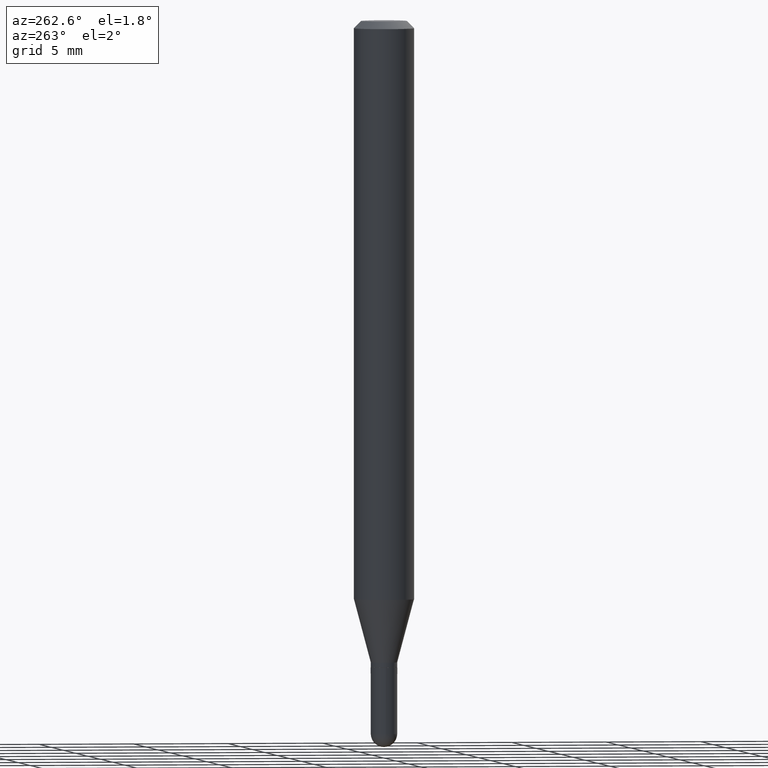
[diagram: clean part render]
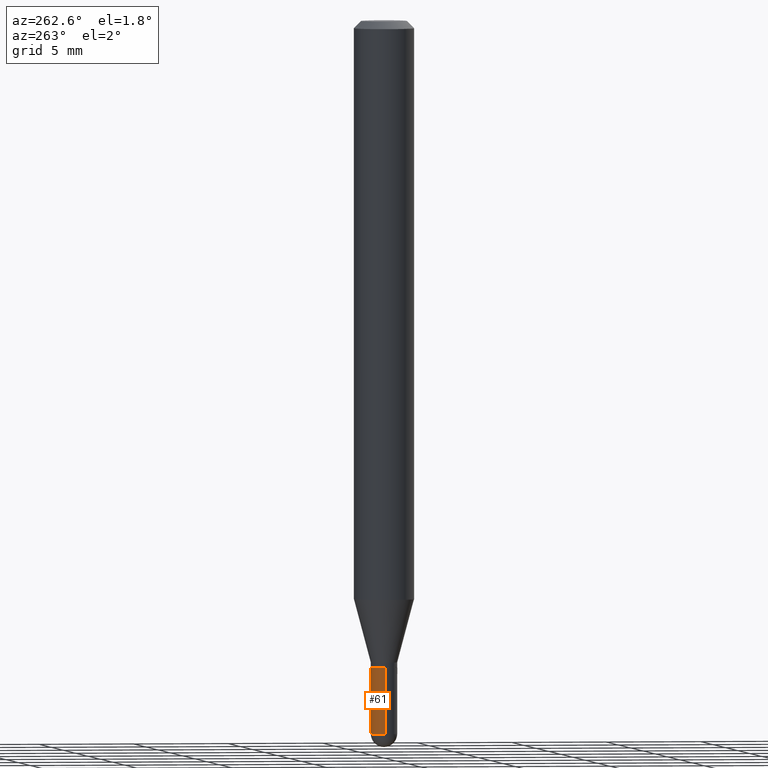
[diagram: same view with one face highlighted and labeled with its STEP entity id]
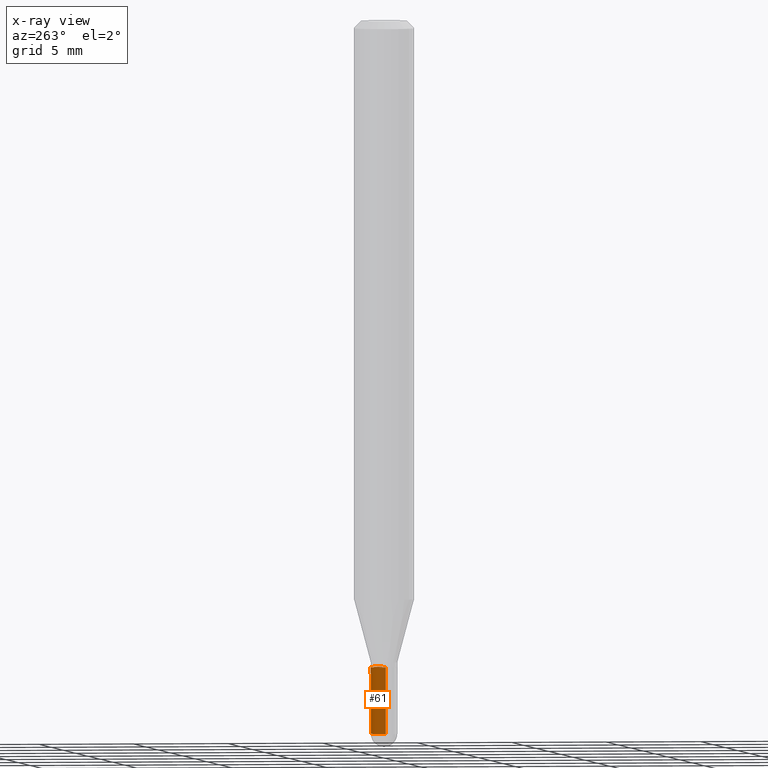
[diagram: x-ray of the same camera — body ghosted, the highlighted face saturated]
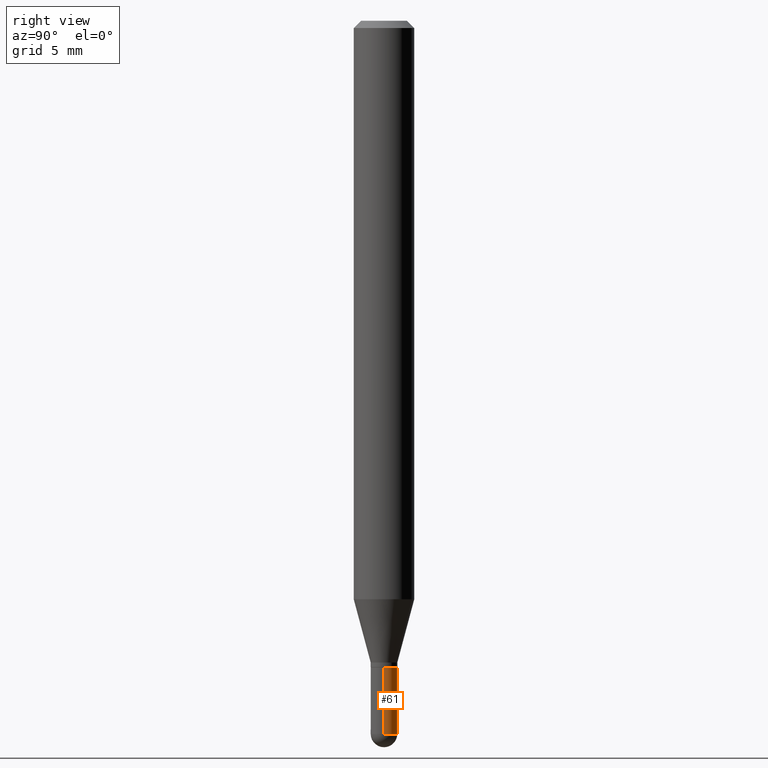
[diagram: same view with one face highlighted and labeled with its STEP entity id]
A machine part, auxiliary view. The second image highlights one B-rep face of the part: STEP entity #61.
The next image is the same camera in x-ray: the body ghosted, the highlighted face saturated — about 0% of this face is hidden behind the body in this view.
A second angle (right view) of the same face is appended — the face is thin or edge-on in the first view.
In plain terms, the highlighted cylindrical surface (edge-blend (fillet) strip) has radius 0.6985 mm, axis along (-0, 0, 1).
Its self-contained STEP definition (entity closure, byte-faithful):
#17 = VECTOR ( 'NONE', #160, 39.37007874015748143 ) ;
#21 = CIRCLE ( 'NONE', #27, 0.02750000000000000708 ) ;
#27 = AXIS2_PLACEMENT_3D ( 'NONE', #163, #389, #238 ) ;
#48 = EDGE_CURVE ( 'NONE', #463, #242, #21, .T. ) ;
#58 = DIRECTION ( 'NONE',  ( -2.445468806185136597E-29, 3.491481338843145583E-15, 1.000000000000000000 ) ) ;
#61 = ADVANCED_FACE ( 'NONE', ( #272 ), #301, .T. ) ;
#71 = DIRECTION ( 'NONE',  ( 1.000000000000000000, -6.982962677686277755E-15, 0.000000000000000000 ) ) ;
#77 = CARTESIAN_POINT ( 'NONE',  ( 0.000000000000000000, 0.000000000000000000, 0.000000000000000000 ) ) ;
#91 = ORIENTED_EDGE ( 'NONE', *, *, #48, .T. ) ;
#103 = CARTESIAN_POINT ( 'NONE',  ( -0.02750000000000000708, 1.953992523340276014E-16, -1.352707149820099356E-30 ) ) ;
#111 = VERTEX_POINT ( 'NONE', #131 ) ;
#131 = CARTESIAN_POINT ( 'NONE',  ( -0.02750000000000000014, -4.705767677067038393E-15, -1.335000000000000187 ) ) ;
#137 = EDGE_CURVE ( 'NONE', #200, #214, #512, .T. ) ;
#142 = CARTESIAN_POINT ( 'NONE',  ( -0.02750000000000000708, -4.705767677067038393E-15, -1.472500000000000142 ) ) ;
#160 = DIRECTION ( 'NONE',  ( -2.445468806185136877E-29, 3.491481338843145188E-15, 1.000000000000000000 ) ) ;
#161 = EDGE_LOOP ( 'NONE', ( #91, #299, #259, #421, #290 ) ) ;
#163 = CARTESIAN_POINT ( 'NONE',  ( 3.600952817107613706E-29, -5.141206271446532325E-15, -1.472500000000000142 ) ) ;
#181 = AXIS2_PLACEMENT_3D ( 'NONE', #77, #304, #345 ) ;
#200 = VERTEX_POINT ( 'NONE', #361 ) ;
#213 = CARTESIAN_POINT ( 'NONE',  ( 3.264700856257157760E-29, -4.661127587355599122E-15, -1.335000000000000187 ) ) ;
#214 = VERTEX_POINT ( 'NONE', #445 ) ;
#220 = AXIS2_PLACEMENT_3D ( 'NONE', #258, #416, #71 ) ;
#238 = DIRECTION ( 'NONE',  ( 1.000000000000000000, -6.982962677686277755E-15, 0.000000000000000000 ) ) ;
#242 = VERTEX_POINT ( 'NONE', #142 ) ;
#248 = LINE ( 'NONE', #103, #364 ) ;
#252 = EDGE_CURVE ( 'NONE', #214, #111, #278, .T. ) ;
#258 = CARTESIAN_POINT ( 'NONE',  ( 3.600952817107613706E-29, -5.141206271446532325E-15, -1.472500000000000142 ) ) ;
#259 = ORIENTED_EDGE ( 'NONE', *, *, #252, .F. ) ;
#272 = FACE_OUTER_BOUND ( 'NONE', #161, .T. ) ;
#277 = CARTESIAN_POINT ( 'NONE',  ( 0.02750000000000000708, -1.920314736363723691E-16, 1.340948613343882588E-30 ) ) ;
#278 = CIRCLE ( 'NONE', #291, 0.02750000000000000014 ) ;
#286 = DIRECTION ( 'NONE',  ( 1.000000000000000000, -6.982962677686279332E-15, 0.000000000000000000 ) ) ;
#288 = EDGE_CURVE ( 'NONE', #242, #111, #248, .T. ) ;
#290 = ORIENTED_EDGE ( 'NONE', *, *, #479, .T. ) ;
#291 = AXIS2_PLACEMENT_3D ( 'NONE', #213, #58, #286 ) ;
#299 = ORIENTED_EDGE ( 'NONE', *, *, #288, .T. ) ;
#301 = CYLINDRICAL_SURFACE ( 'NONE', #181, 0.02750000000000000708 ) ;
#304 = DIRECTION ( 'NONE',  ( -2.445468806185136597E-29, 3.491481338843145583E-15, 1.000000000000000000 ) ) ;
#315 = DIRECTION ( 'NONE',  ( -2.445468806185136877E-29, 3.491481338843145188E-15, 1.000000000000000000 ) ) ;
#326 = CARTESIAN_POINT ( 'NONE',  ( 1.953992523340638644E-16, 0.02749999999999491046, -1.472500000000000142 ) ) ;
#345 = DIRECTION ( 'NONE',  ( 1.000000000000000000, -6.982962677686265922E-15, 4.876176775795935232E-29 ) ) ;
#361 = CARTESIAN_POINT ( 'NONE',  ( 0.02750000000000000708, -5.093198403037438216E-15, -1.472500000000000142 ) ) ;
#364 = VECTOR ( 'NONE', #315, 39.37007874015748143 ) ;
#389 = DIRECTION ( 'NONE',  ( -2.445468806185136597E-29, 3.491481338843145583E-15, 1.000000000000000000 ) ) ;
#416 = DIRECTION ( 'NONE',  ( -2.445468806185136597E-29, 3.491481338843145583E-15, 1.000000000000000000 ) ) ;
#421 = ORIENTED_EDGE ( 'NONE', *, *, #137, .F. ) ;
#437 = CIRCLE ( 'NONE', #220, 0.02750000000000000708 ) ;
#445 = CARTESIAN_POINT ( 'NONE',  ( 0.02750000000000000014, -4.853159060991972403E-15, -1.335000000000000187 ) ) ;
#463 = VERTEX_POINT ( 'NONE', #326 ) ;
#479 = EDGE_CURVE ( 'NONE', #200, #463, #437, .T. ) ;
#512 = LINE ( 'NONE', #277, #17 ) ;